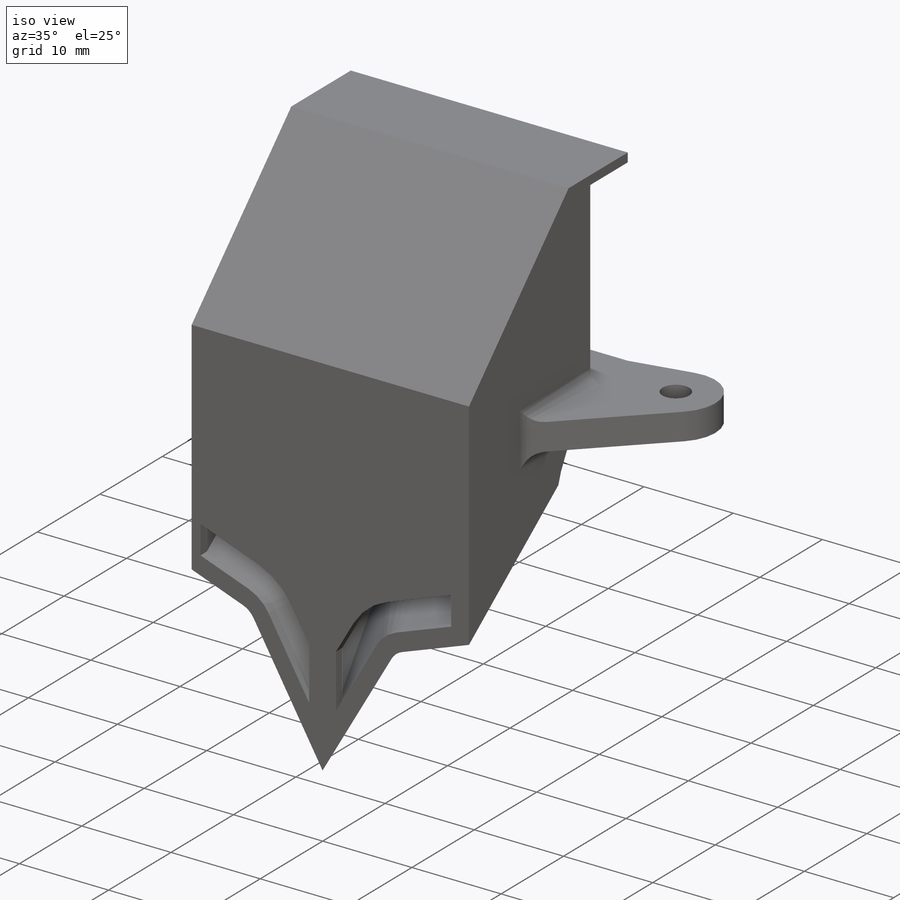
[diagram: iso view]
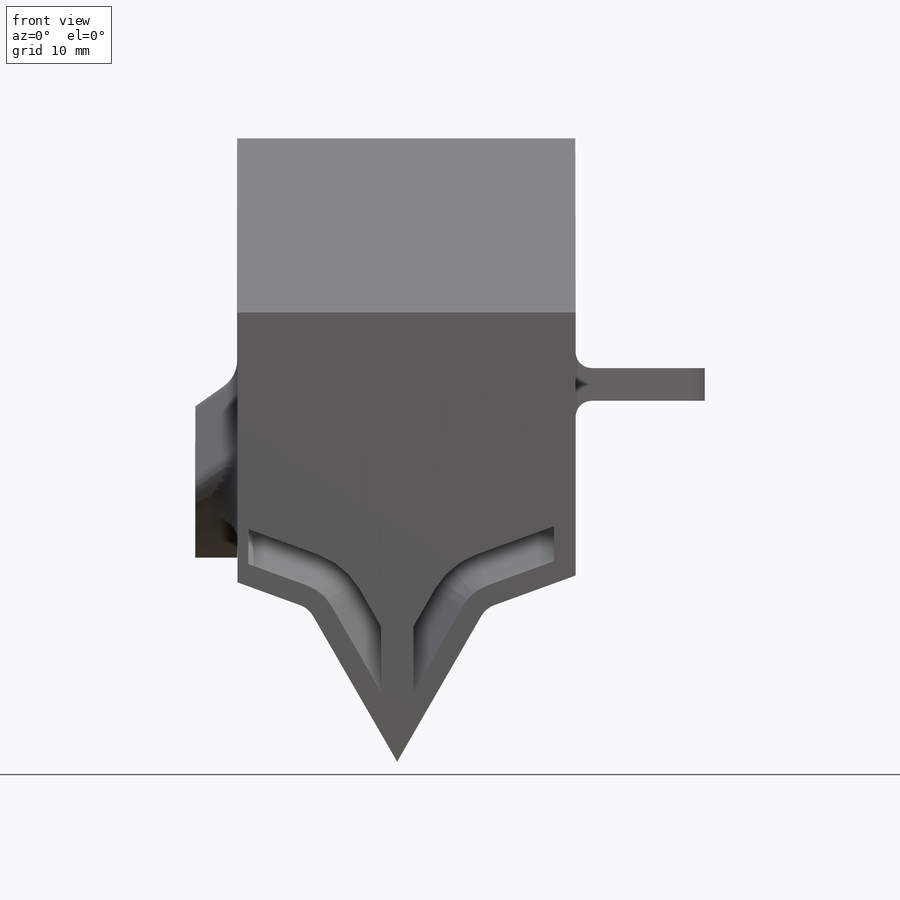
[diagram: front view]
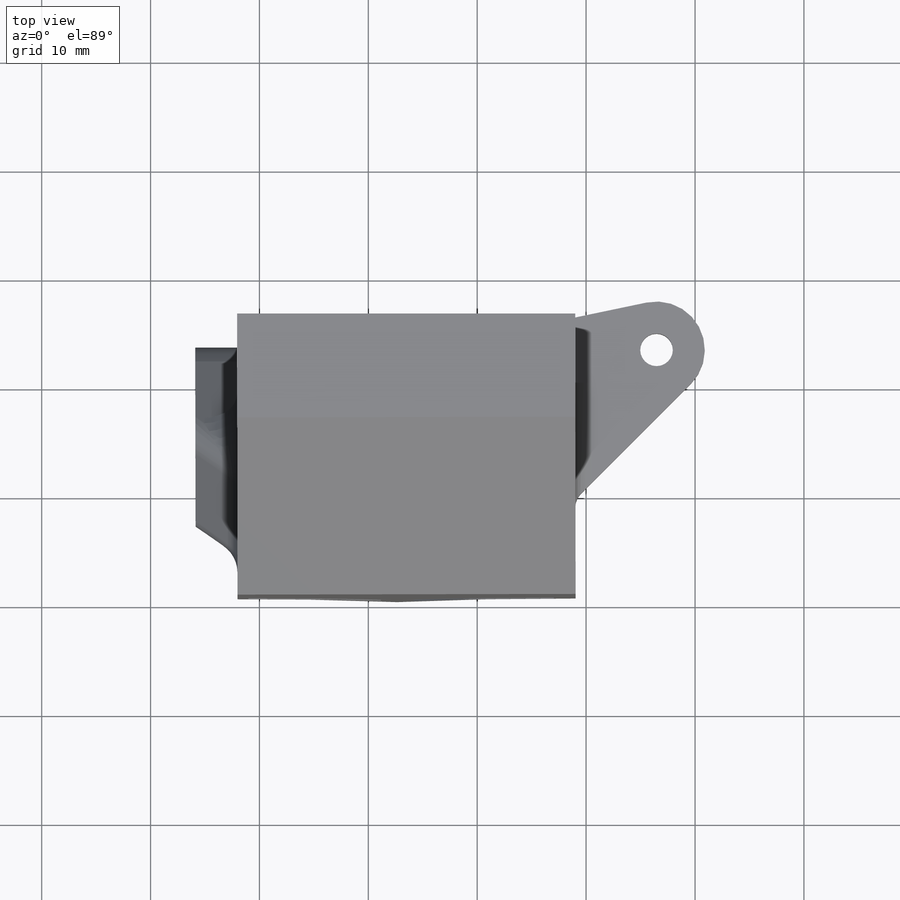
[diagram: top view]
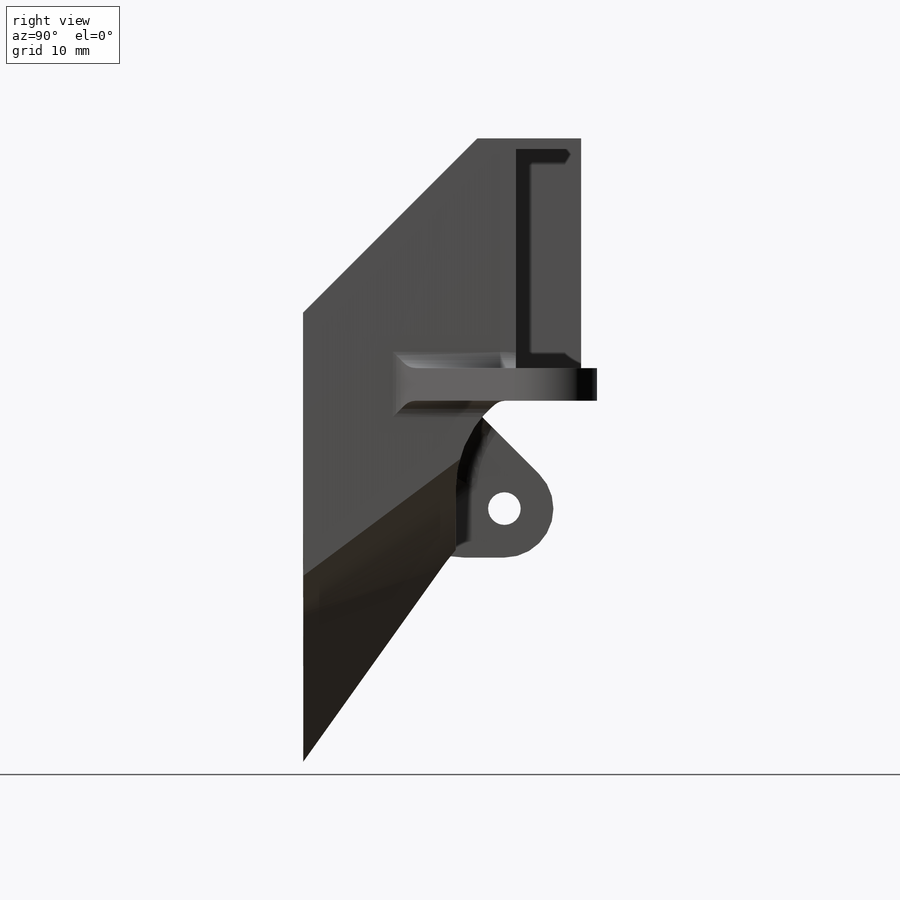
[diagram: right view]
SOLIDWORKS PART (.sldprt)
format: sldprt  version: not decoded by parser v0  size: 504,832 bytes
history: native  units: mm
features: sketch x7, extrude x6, fillet x6, chamfer x2, material x1, plane x1, shell x1, cut_extrude x1 (+13 scaffold rows collapsed)
feature tree (38):
  scaffold x13  (default folders/planes/origin — collapsed)
  material  "Material <not specified>"
  sketch  "Sketch1"  dims[c1.D2=1.0mm c1.D3=1.0mm c1.D4=1.0mm c1.D1=0.05mm c2.D2=1.0mm]
  extrude  "Boss-Extrude1"  Depth=6mm
  sketch  "Sketch2"  dims[D1=1.0mm]
  extrude  "Boss-Extrude2"  Depth=1mm
  plane  "Plane1"  Offset=2mm
  sketch  "Sketch4"  dims[c1.D1=17.0mm c1.D3=5.0mm c2.D1=2.0mm c2.D2=~6.538913mm c3.D2=250.0deg c3.D4=~2.731645mm c4.D4=220.0deg]
  extrude  "Boss-Extrude3"  Depth=14mm
  sketch  "Sketch6"  dims[D1=0.0mm]
  extrude  "Boss-Extrude5"  [1 undecoded]
  chamfer  "Chamfer1"  Distance=16mm Angle=45deg
  fillet  "Fillet2"  Radius=10mm
  shell  "Shell1"  Thickness=1mm
  sketch  "Sketch7"  dims[c1.D3=5.0mm c1.D2=~7.746467mm c2.D2=~0.335516deg c3.D2=2.5mm c3.D3=~8.605105mm c4.D3=~1.84761deg c5.D3=1.5mm c5.D4=2.0mm c5.D1=0.0mm c5.D2=3.0mm c6.D4=1.0mm c6.D2=3.0mm]
  cut_extrude  "Cut-Extrude2"  [1 undecoded]
  sketch  "Sketch8"  dims[c1.D1=3.0mm c1.D2=~8.864034mm c1.D3=~14.856096mm c2.D3=45.0deg]
  extrude  "Boss-Extrude6"  Depth=3mm
  fillet  "Fillet3"  Radius=2mm
  fillet  "Fillet4"  Radius=1.5mm
  sketch  "Sketch9"  dims[c1.D1=3.0mm c1.D2=4.5mm c1.D6=8.0mm c1.D3=~6.332837mm c2.D3=45.0deg c3.D3=~7.681981mm c4.D3=45.0deg c4.D4=7.0mm c4.D5=10.0mm]
  extrude  "Boss-Extrude7"  [1 undecoded]
  fillet  "Fillet6"  Radius=2mm
  chamfer  "Chamfer2"  Distance=4mm Angle=45deg
  fillet  "Fillet7"  Radius=2mm
  fillet  "Fillet8"  Radius=3mm
decode coverage: 20 of 23 modeling features carry decoded parameters
note: ~ marks probable driven/reference dimensions
note: 3 parameter values undecoded
summary: no parameter record found for 3 features
note: suppression state not decoded; provenance and decode notes live in map.json
